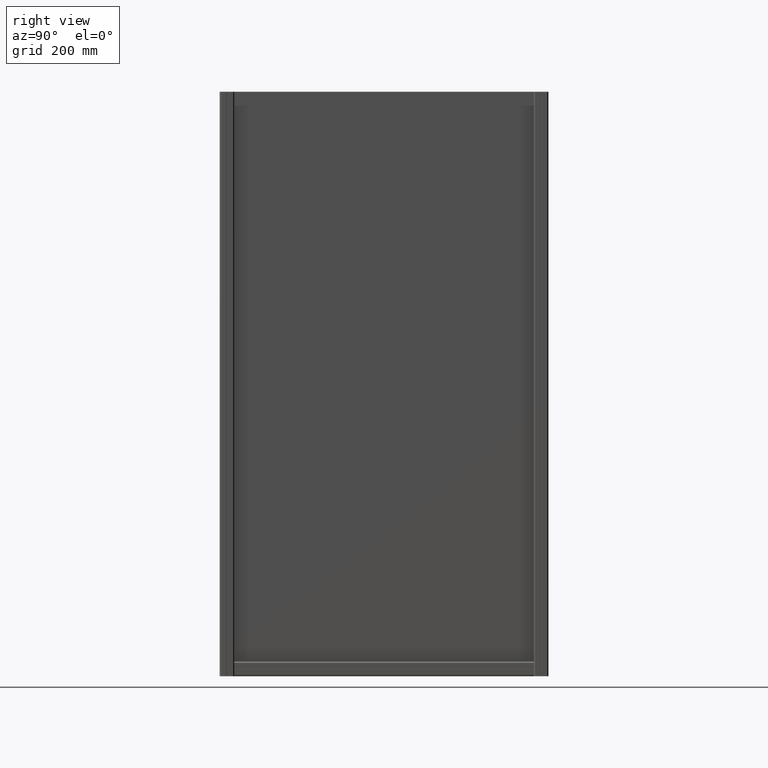
[diagram: clean part render]
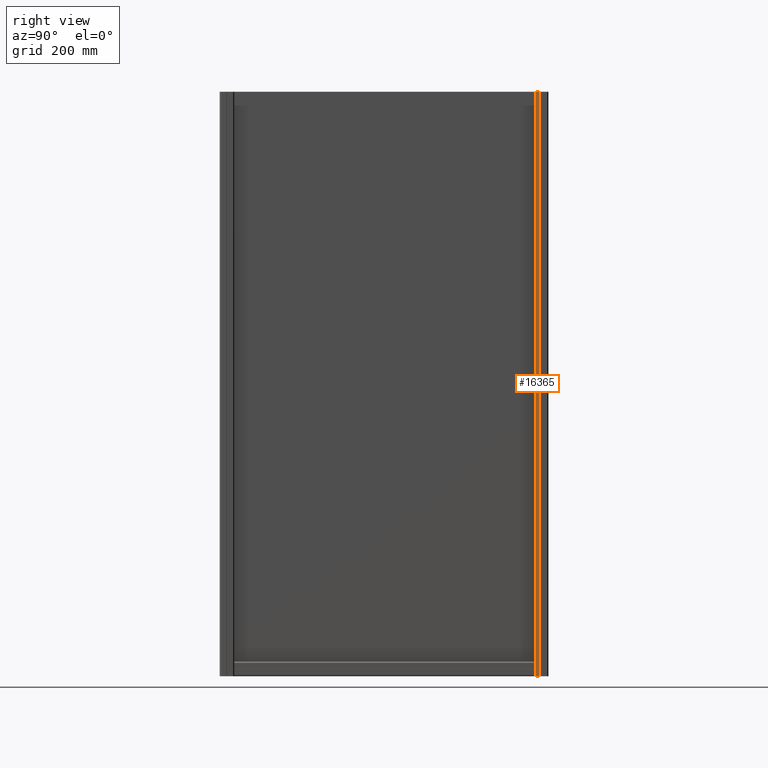
[diagram: same view with one face highlighted and labeled with its STEP entity id]
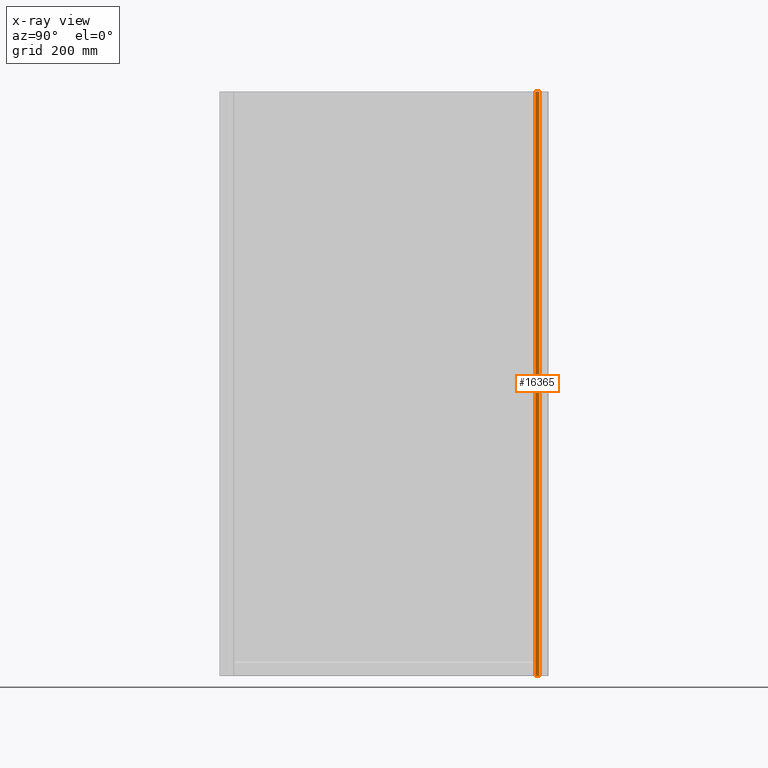
[diagram: x-ray of the same camera — body ghosted, the highlighted face saturated]
A machine part, right view. The second image highlights one B-rep face of the part: STEP entity #16365.
The next image is the same camera in x-ray: the body ghosted, the highlighted face saturated — about 0% of this face is hidden behind the body in this view.
In plain terms, the highlighted planar face has unit normal (-1, 0, 0).
Its self-contained STEP definition (entity closure, byte-faithful):
#46 = VECTOR ( 'NONE', #7332, 1000.000000000000000 ) ;
#66 = VERTEX_POINT ( 'NONE', #8701 ) ;
#348 = ORIENTED_EDGE ( 'NONE', *, *, #4231, .F. ) ;
#550 = CARTESIAN_POINT ( 'NONE',  ( 20.00000000000000000, -5.100000000000360245, 800.0000000000000000 ) ) ;
#1787 = LINE ( 'NONE', #550, #7206 ) ;
#2601 = EDGE_CURVE ( 'NONE', #3199, #11294, #1787, .T. ) ;
#3199 = VERTEX_POINT ( 'NONE', #9413 ) ;
#4231 = EDGE_CURVE ( 'NONE', #3199, #4920, #4606, .T. ) ;
#4408 = CARTESIAN_POINT ( 'NONE',  ( 20.00000000000000000, -15.49999999999820055, -1000.000000000000000 ) ) ;
#4606 = LINE ( 'NONE', #9619, #10225 ) ;
#4920 = VERTEX_POINT ( 'NONE', #4408 ) ;
#5360 = ORIENTED_EDGE ( 'NONE', *, *, #2601, .T. ) ;
#6507 = AXIS2_PLACEMENT_3D ( 'NONE', #13232, #12157, #13591 ) ;
#7206 = VECTOR ( 'NONE', #12148, 1000.000000000000000 ) ;
#7332 = DIRECTION ( 'NONE',  ( -3.336006684571485188E-16, 1.000000000000000000, 0.000000000000000000 ) ) ;
#7350 = EDGE_LOOP ( 'NONE', ( #15310, #16273, #348, #5360 ) ) ;
#8397 = VECTOR ( 'NONE', #12721, 1000.000000000000000 ) ;
#8555 = DIRECTION ( 'NONE',  ( 0.000000000000000000, -1.000000000000000000, 0.000000000000000000 ) ) ;
#8701 = CARTESIAN_POINT ( 'NONE',  ( 20.00000000000000000, -15.49999999999820055, 600.0000000000000000 ) ) ;
#9413 = CARTESIAN_POINT ( 'NONE',  ( 20.00000000000000000, -5.100000000000370903, -1000.000000000000000 ) ) ;
#9619 = CARTESIAN_POINT ( 'NONE',  ( 20.00000000000000000, -5.100000000000370903, -1000.000000000000000 ) ) ;
#10134 = EDGE_CURVE ( 'NONE', #4920, #66, #13954, .T. ) ;
#10225 = VECTOR ( 'NONE', #8555, 1000.000000000000000 ) ;
#11028 = CARTESIAN_POINT ( 'NONE',  ( 20.00000000000000000, -5.100000000000370903, 600.0000000000000000 ) ) ;
#11137 = FACE_OUTER_BOUND ( 'NONE', #7350, .T. ) ;
#11294 = VERTEX_POINT ( 'NONE', #11028 ) ;
#11513 = CARTESIAN_POINT ( 'NONE',  ( 20.00000000000000000, -15.49999999999820055, 600.0000000000000000 ) ) ;
#12148 = DIRECTION ( 'NONE',  ( 0.000000000000000000, 0.000000000000000000, 1.000000000000000000 ) ) ;
#12157 = DIRECTION ( 'NONE',  ( -1.000000000000000000, 0.000000000000000000, 0.000000000000000000 ) ) ;
#12721 = DIRECTION ( 'NONE',  ( 0.000000000000000000, 0.000000000000000000, 1.000000000000000000 ) ) ;
#13232 = CARTESIAN_POINT ( 'NONE',  ( 20.00000000000000000, -15.49999999999820055, 800.0000000000000000 ) ) ;
#13303 = CARTESIAN_POINT ( 'NONE',  ( 20.00000000000000000, -15.49999999999820055, 800.0000000000000000 ) ) ;
#13591 = DIRECTION ( 'NONE',  ( 0.000000000000000000, 0.000000000000000000, 1.000000000000000000 ) ) ;
#13954 = LINE ( 'NONE', #13303, #8397 ) ;
#14678 = PLANE ( 'NONE',  #6507 ) ;
#15310 = ORIENTED_EDGE ( 'NONE', *, *, #16530, .F. ) ;
#16221 = LINE ( 'NONE', #11513, #46 ) ;
#16273 = ORIENTED_EDGE ( 'NONE', *, *, #10134, .F. ) ;
#16365 = ADVANCED_FACE ( 'NONE', ( #11137 ), #14678, .F. ) ;
#16530 = EDGE_CURVE ( 'NONE', #66, #11294, #16221, .T. ) ;